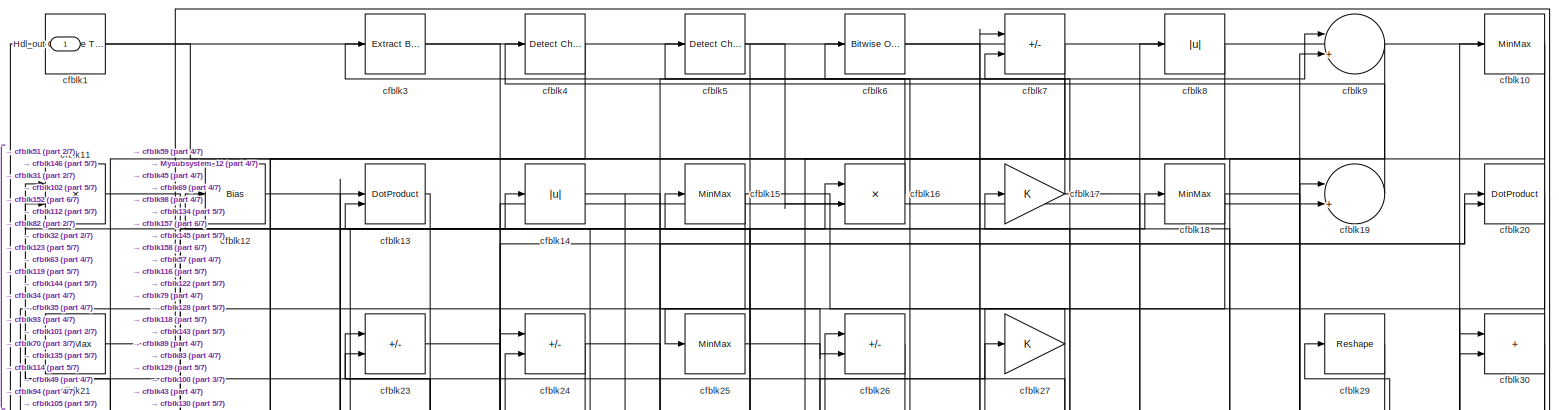
[diagram: root canvas - part 1/7, full width, top band]
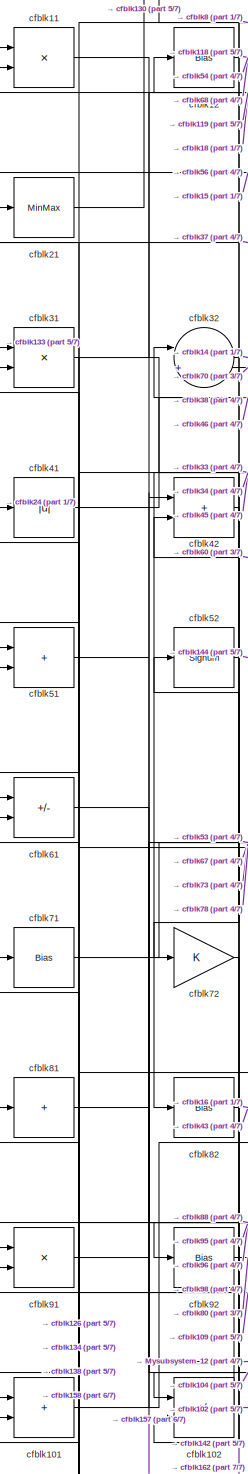
[diagram: root canvas - part 2/7, middle left region]
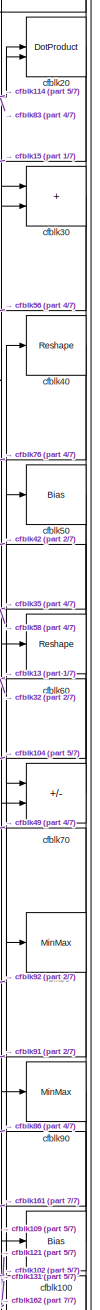
[diagram: root canvas - part 3/7, top right region]
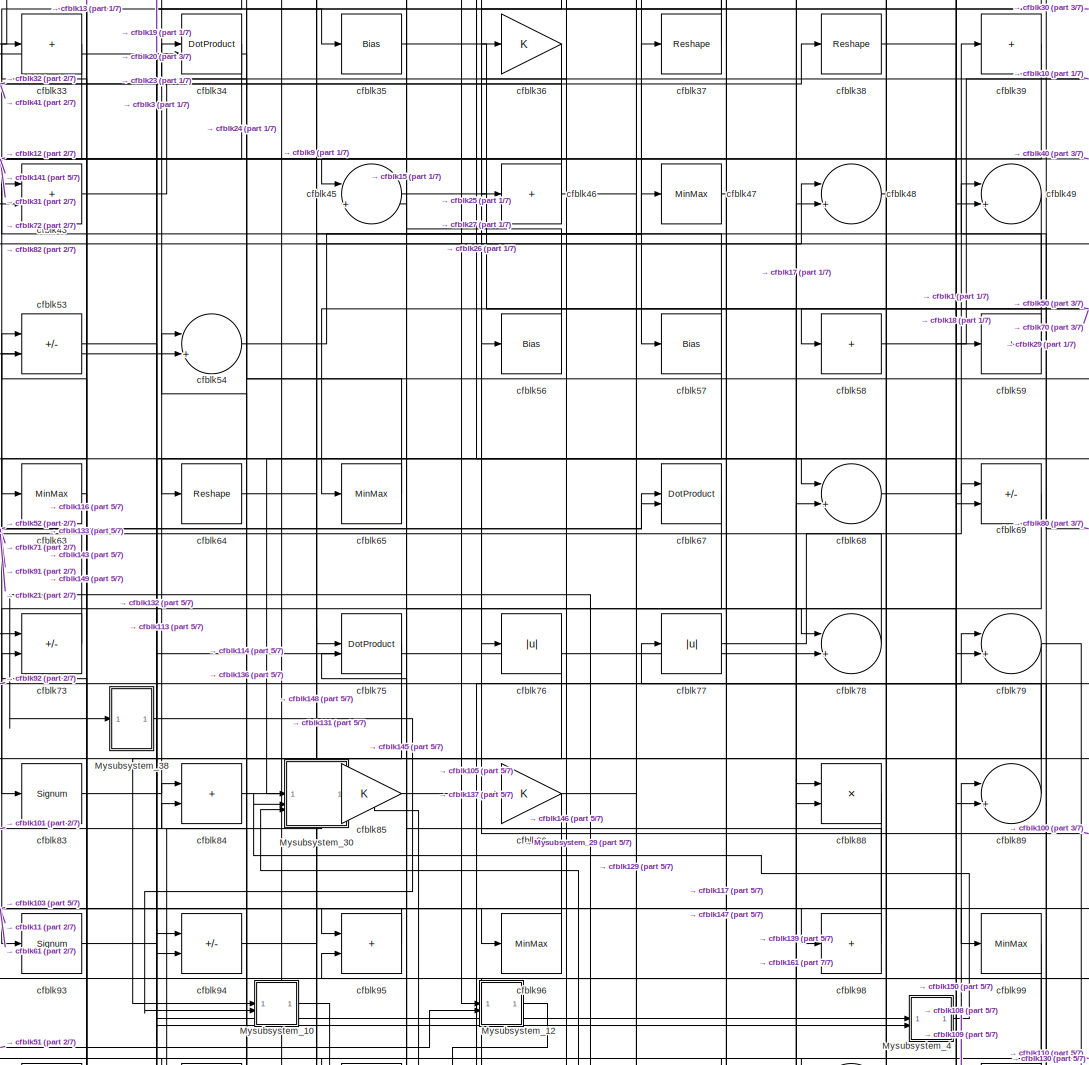
[diagram: root canvas - part 4/7, central region]
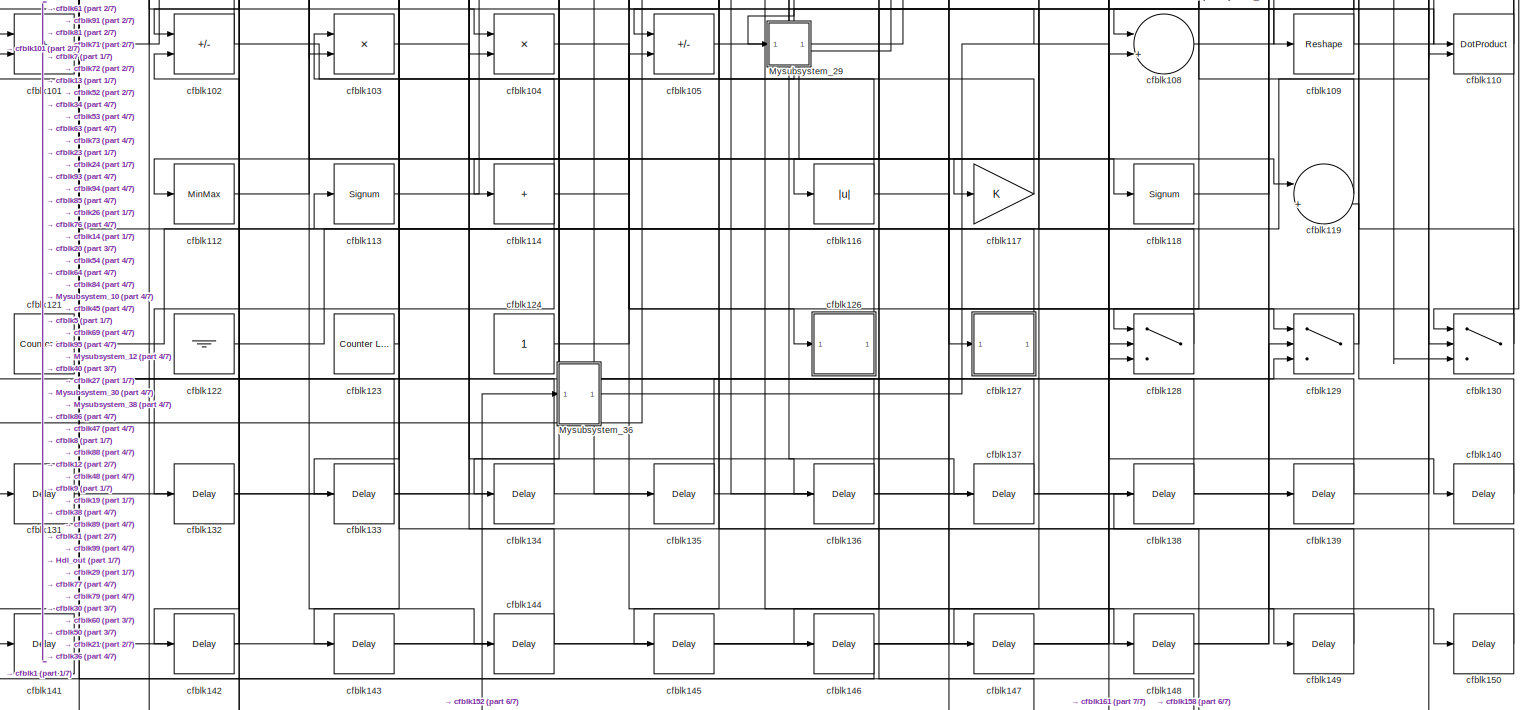
[diagram: root canvas - part 5/7, full width, bottom band]
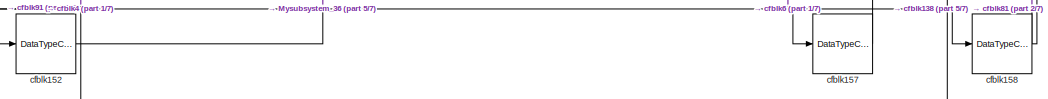
[diagram: root canvas - part 6/7, bottom center region]
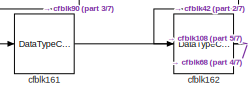
[diagram: root canvas - part 7/7, bottom left region]
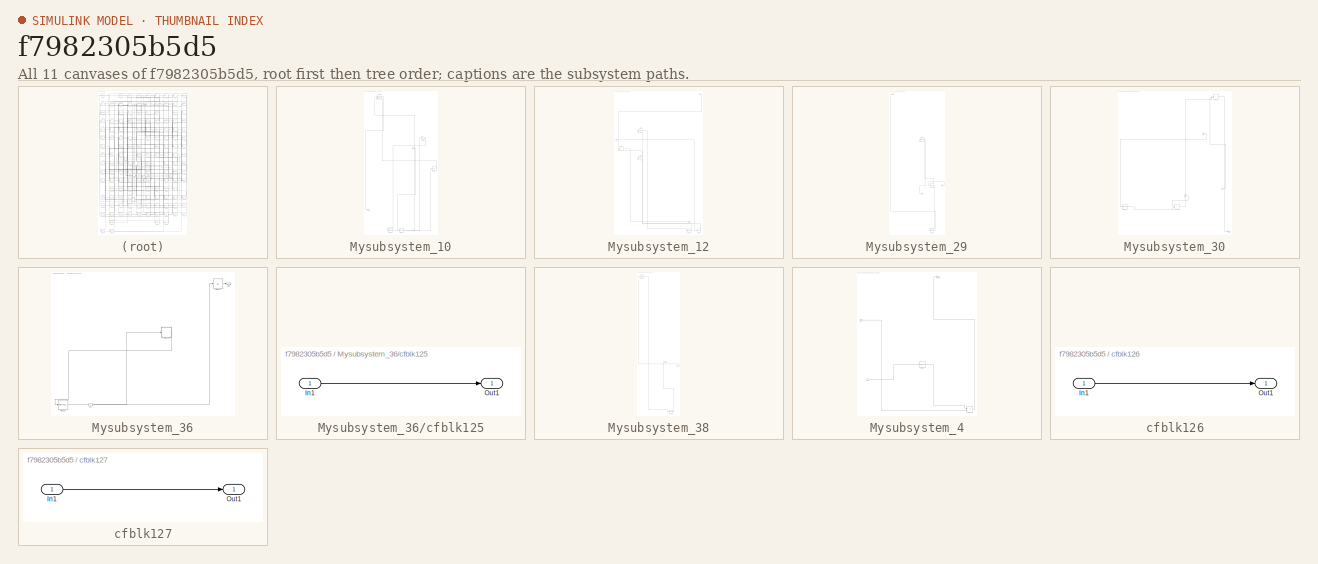
[diagram: thumbnail index - all 11 canvases of the model, root first then tree order]
MODEL slx_f7982305b5d5
KIND model
CONFIG AbsTol = auto
CONFIG EnableMultiTasking = off
CONFIG FixedStep = auto
CONFIG MaxStep = auto
CONFIG MinStep = auto
CONFIG RelTol = 1e-3
CONFIG SampleTimeConstraint = Unconstrained
CONFIG SolverName = VariableStepAuto
CONFIG StartTime = 0.0
CONFIG StopTime = 10.0
BLOCK [Outport] Hdl_out
  OutDataTypeStr = uint8
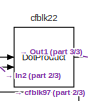
[diagram: Mysubsystem_10 - part 1/3, top left region]
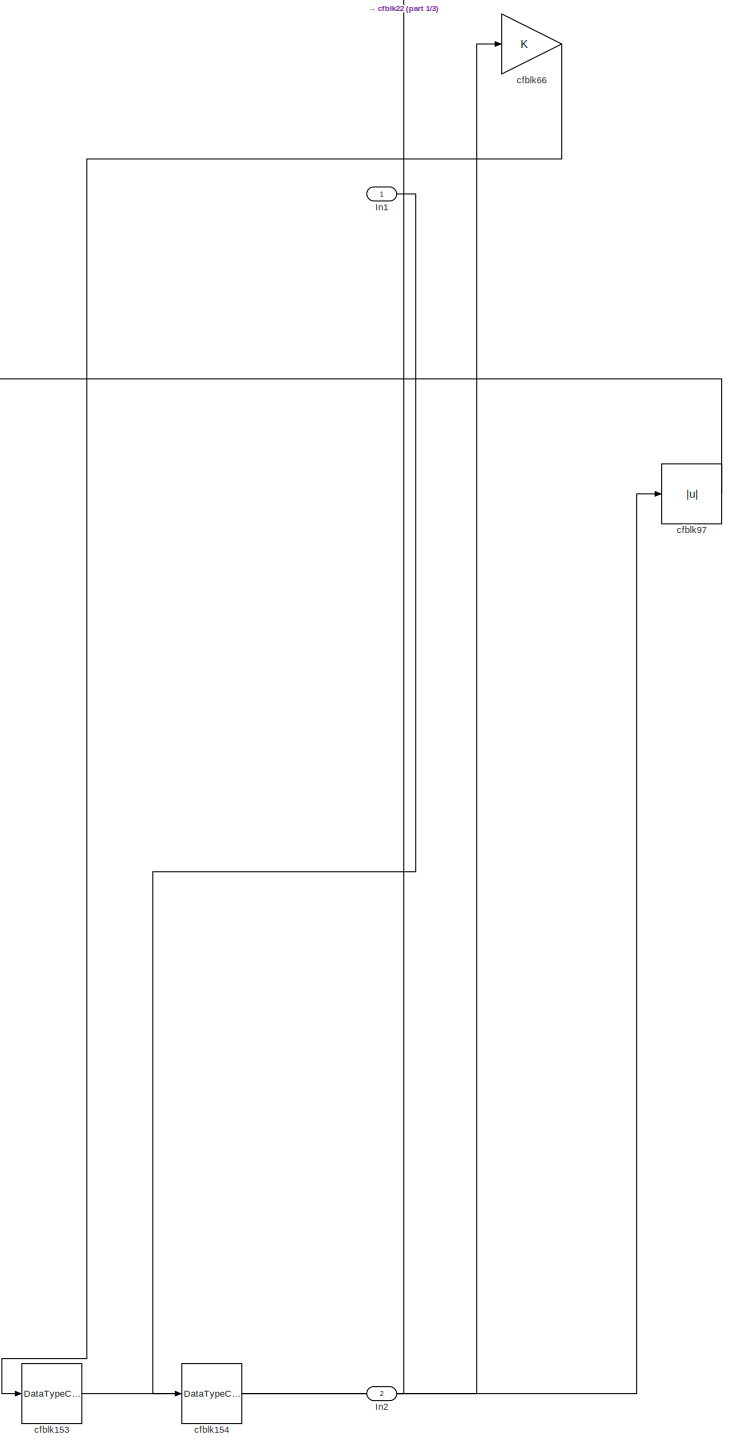
[diagram: Mysubsystem_10 - part 2/3, central region]
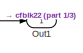
[diagram: Mysubsystem_10 - part 3/3, bottom left region]
BLOCK [SubSystem] Mysubsystem_10
  RTWFcnName = Mysubsystem_10
  RTWFcnNameOpts = User specified
  RTWFileNameOpts = Use function name
  RTWSystemCode = Reusable function
  TreatAsAtomicUnit = on
BLOCK [Inport] Mysubsystem_10/In1
BLOCK [Inport] Mysubsystem_10/In2
  Port = 2
BLOCK [Outport] Mysubsystem_10/Out1
BLOCK [DataTypeConversion] Mysubsystem_10/cfblk153
  OutDataTypeStr = uint8
  RndMeth = Floor
  SaturateOnIntegerOverflow = off
BLOCK [DataTypeConversion] Mysubsystem_10/cfblk154
  OutDataTypeStr = uint8
  RndMeth = Floor
  SaturateOnIntegerOverflow = off
BLOCK [DotProduct] Mysubsystem_10/cfblk22
  OutDataTypeStr = Inherit: Inherit via internal rule
BLOCK [Gain] Mysubsystem_10/cfblk66
BLOCK [Abs] Mysubsystem_10/cfblk97
  SaturateOnIntegerOverflow = off
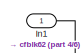
[diagram: Mysubsystem_12 - part 1/6, top right region]
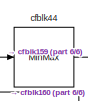
[diagram: Mysubsystem_12 - part 2/6, top left region]
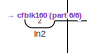
[diagram: Mysubsystem_12 - part 3/6, middle left region]
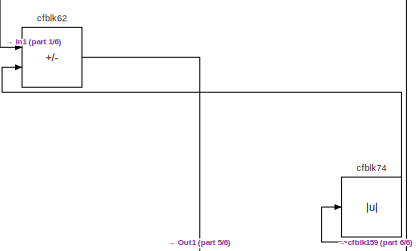
[diagram: Mysubsystem_12 - part 4/6, middle left region]
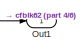
[diagram: Mysubsystem_12 - part 5/6, bottom right region]
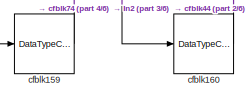
[diagram: Mysubsystem_12 - part 6/6, bottom right region]
BLOCK [SubSystem] Mysubsystem_12
  RTWFcnName = Mysubsystem_12
  RTWFcnNameOpts = User specified
  RTWFileNameOpts = Use function name
  RTWSystemCode = Reusable function
  TreatAsAtomicUnit = on
BLOCK [Inport] Mysubsystem_12/In1
BLOCK [Inport] Mysubsystem_12/In2
  Port = 2
BLOCK [Outport] Mysubsystem_12/Out1
BLOCK [DataTypeConversion] Mysubsystem_12/cfblk159
  OutDataTypeStr = uint8
  RndMeth = Floor
  SaturateOnIntegerOverflow = off
BLOCK [DataTypeConversion] Mysubsystem_12/cfblk160
  OutDataTypeStr = uint8
  RndMeth = Floor
  SaturateOnIntegerOverflow = off
BLOCK [MinMax] Mysubsystem_12/cfblk44
BLOCK [Sum] Mysubsystem_12/cfblk62
  IconShape = rectangular
  Inputs = +-
BLOCK [Abs] Mysubsystem_12/cfblk74
  SaturateOnIntegerOverflow = off
BLOCK [SubSystem] Mysubsystem_29
  RTWFcnName = Mysubsystem_29
  RTWFcnNameOpts = User specified
  RTWFileNameOpts = Use function name
  RTWSystemCode = Reusable function
  TreatAsAtomicUnit = on
BLOCK [Inport] Mysubsystem_29/In1
BLOCK [Outport] Mysubsystem_29/Out1
BLOCK [Outport] Mysubsystem_29/Out2
  Port = 2
BLOCK [Abs] Mysubsystem_29/cfblk106
  SaturateOnIntegerOverflow = off
BLOCK [DataTypeConversion] Mysubsystem_29/cfblk156
  OutDataTypeStr = uint8
  RndMeth = Floor
  SaturateOnIntegerOverflow = off
BLOCK [Reshape] Mysubsystem_29/cfblk55
BLOCK [SubSystem] Mysubsystem_30
  RTWFcnName = Mysubsystem_30
  RTWFcnNameOpts = User specified
  RTWFileNameOpts = Use function name
  RTWSystemCode = Reusable function
  TreatAsAtomicUnit = on
BLOCK [Inport] Mysubsystem_30/In1
BLOCK [Inport] Mysubsystem_30/In2
  Port = 2
BLOCK [Inport] Mysubsystem_30/In3
  Port = 3
BLOCK [Outport] Mysubsystem_30/Out1
BLOCK [Signum] Mysubsystem_30/cfblk111
BLOCK [Sum] Mysubsystem_30/cfblk115
  IconShape = rectangular
BLOCK [Sum] Mysubsystem_30/cfblk28
  IconShape = rectangular
BLOCK [SubSystem] Mysubsystem_36
  RTWFcnName = Mysubsystem_36
  RTWFcnNameOpts = User specified
  RTWFileNameOpts = Use function name
  RTWSystemCode = Reusable function
  TreatAsAtomicUnit = on
BLOCK [Inport] Mysubsystem_36/In1
BLOCK [Outport] Mysubsystem_36/Out1
BLOCK [Abs] Mysubsystem_36/cfblk107
  SaturateOnIntegerOverflow = off
BLOCK [SubSystem] Mysubsystem_36/cfblk125
  LibrarySourceBlock = hdlsllib/Ports &\nSubsystems/Subsystem
BLOCK [Inport] Mysubsystem_36/cfblk125/In1
BLOCK [Outport] Mysubsystem_36/cfblk125/Out1
BLOCK [DataTypeConversion] Mysubsystem_36/cfblk151
  OutDataTypeStr = uint8
  RndMeth = Floor
  SaturateOnIntegerOverflow = off
BLOCK [SubSystem] Mysubsystem_38
  RTWFcnName = Mysubsystem_38
  RTWFcnNameOpts = User specified
  RTWFileNameOpts = Use function name
  RTWSystemCode = Reusable function
  TreatAsAtomicUnit = on
BLOCK [Outport] Mysubsystem_38/Out1
BLOCK [DataTypeConversion] Mysubsystem_38/cfblk155
  OutDataTypeStr = uint8
  RndMeth = Floor
  SaturateOnIntegerOverflow = off
BLOCK [Reference] Mysubsystem_38/cfblk2  REF=simulink/Logic and Bit
Operations/Extract Bits
  LibrarySourceBlock = hdlsllib/Logic and Bit\nOperations/Extract Bits
  SourceBlock = simulink/Logic and Bit\nOperations/Extract Bits
  SourceType = Extract Bits
BLOCK [Inport] Mysubsystem_38/u
BLOCK [SubSystem] Mysubsystem_4
  RTWFcnName = Mysubsystem_4
  RTWFcnNameOpts = User specified
  RTWFileNameOpts = Use function name
  RTWSystemCode = Reusable function
  TreatAsAtomicUnit = on
BLOCK [Inport] Mysubsystem_4/In1
BLOCK [Inport] Mysubsystem_4/In2
  Port = 2
BLOCK [Outport] Mysubsystem_4/Out1
BLOCK [Product] Mysubsystem_4/cfblk120
  Inputs = */
  RndMeth = Zero
  SaturateOnIntegerOverflow = on
BLOCK [Signum] Mysubsystem_4/cfblk87
BLOCK [Reference] cfblk1  REF=hdlsllib/Logic and Bit
Operations/Compare
To Constant
  SourceBlock = hdlsllib/Logic and Bit\nOperations/Compare\nTo Constant
  SourceType = Compare To Constant
BLOCK [MinMax] cfblk10
  OutDataTypeStr = uint8
BLOCK [Bias] cfblk100
  Bias = 0.0
  SaturateOnIntegerOverflow = off
BLOCK [Sum] cfblk101
  IconShape = rectangular
  OutDataTypeStr = uint8
BLOCK [Sum] cfblk102
  IconShape = rectangular
  Inputs = +-
  OutDataTypeStr = uint8
BLOCK [Product] cfblk103
  Inputs = */
  OutDataTypeStr = uint8
  RndMeth = Zero
  SaturateOnIntegerOverflow = on
BLOCK [Product] cfblk104
  Inputs = */
  OutDataTypeStr = uint8
  RndMeth = Zero
  SaturateOnIntegerOverflow = on
BLOCK [Sum] cfblk105
  IconShape = rectangular
  Inputs = +-
  OutDataTypeStr = uint8
BLOCK [Sum] cfblk108
  Inputs = |++
  OutDataTypeStr = uint8
BLOCK [Reshape] cfblk109
BLOCK [Product] cfblk11
  Inputs = */
  OutDataTypeStr = uint8
  RndMeth = Zero
  SaturateOnIntegerOverflow = on
BLOCK [DotProduct] cfblk110
  OutDataTypeStr = uint8
BLOCK [MinMax] cfblk112
  OutDataTypeStr = uint8
BLOCK [Signum] cfblk113
BLOCK [Sum] cfblk114
  IconShape = rectangular
  Inputs = +
  OutDataTypeStr = uint8
BLOCK [Abs] cfblk116
  OutDataTypeStr = uint8
  SaturateOnIntegerOverflow = off
BLOCK [Gain] cfblk117
  OutDataTypeStr = uint8
BLOCK [Signum] cfblk118
BLOCK [Sum] cfblk119
  Inputs = |++
  OutDataTypeStr = uint8
BLOCK [Bias] cfblk12
  Bias = 0.0
  SaturateOnIntegerOverflow = off
BLOCK [Reference] cfblk121  REF=hdlsllib/Sources/Counter
Limited
  SourceBlock = hdlsllib/Sources/Counter\nLimited
  SourceType = Counter Limited
BLOCK [Ground] cfblk122
BLOCK [Reference] cfblk123  REF=hdlsllib/Sources/Counter
Limited
  SourceBlock = hdlsllib/Sources/Counter\nLimited
  SourceType = Counter Limited
BLOCK [Constant] cfblk124
  OutDataTypeStr = uint8
  SampleTime = -1
BLOCK [SubSystem] cfblk126
  LibrarySourceBlock = hdlsllib/Ports &\nSubsystems/Subsystem
BLOCK [Inport] cfblk126/In1
BLOCK [Outport] cfblk126/Out1
BLOCK [SubSystem] cfblk127
  LibrarySourceBlock = hdlsllib/Ports &\nSubsystems/Subsystem
BLOCK [Inport] cfblk127/In1
BLOCK [Outport] cfblk127/Out1
BLOCK [Switch] cfblk128
  InputSameDT = off
  OutDataTypeStr = uint8
  SaturateOnIntegerOverflow = off
BLOCK [Switch] cfblk129
  InputSameDT = off
  OutDataTypeStr = uint8
  SaturateOnIntegerOverflow = off
BLOCK [DotProduct] cfblk13
  OutDataTypeStr = uint8
BLOCK [Switch] cfblk130
  InputSameDT = off
  OutDataTypeStr = uint8
  SaturateOnIntegerOverflow = off
BLOCK [Delay] cfblk131
  InputPortMap = u0
  SampleTime = 1
BLOCK [Delay] cfblk132
  InputPortMap = u0
  SampleTime = 1
BLOCK [Delay] cfblk133
  InputPortMap = u0
  SampleTime = 1
BLOCK [Delay] cfblk134
  InputPortMap = u0
  SampleTime = 1
BLOCK [Delay] cfblk135
  InputPortMap = u0
  SampleTime = 1
BLOCK [Delay] cfblk136
  InputPortMap = u0
  SampleTime = 1
BLOCK [Delay] cfblk137
  InputPortMap = u0
  SampleTime = 1
BLOCK [Delay] cfblk138
  InputPortMap = u0
  SampleTime = 1
BLOCK [Delay] cfblk139
  InputPortMap = u0
  SampleTime = 1
BLOCK [Abs] cfblk14
  OutDataTypeStr = uint8
  SaturateOnIntegerOverflow = off
BLOCK [Delay] cfblk140
  InputPortMap = u0
  SampleTime = 1
BLOCK [Delay] cfblk141
  InputPortMap = u0
  SampleTime = 1
BLOCK [Delay] cfblk142
  InputPortMap = u0
  SampleTime = 1
BLOCK [Delay] cfblk143
  InputPortMap = u0
  SampleTime = 1
BLOCK [Delay] cfblk144
  InputPortMap = u0
  SampleTime = 1
BLOCK [Delay] cfblk145
  InputPortMap = u0
  SampleTime = 1
BLOCK [Delay] cfblk146
  InputPortMap = u0
  SampleTime = 1
BLOCK [Delay] cfblk147
  InputPortMap = u0
  SampleTime = 1
BLOCK [Delay] cfblk148
  InputPortMap = u0
  SampleTime = 1
BLOCK [Delay] cfblk149
  InputPortMap = u0
  SampleTime = 1
BLOCK [MinMax] cfblk15
  OutDataTypeStr = uint8
BLOCK [Delay] cfblk150
  InputPortMap = u0
  SampleTime = 1
BLOCK [DataTypeConversion] cfblk152
  OutDataTypeStr = uint8
  RndMeth = Floor
  SaturateOnIntegerOverflow = off
BLOCK [DataTypeConversion] cfblk157
  OutDataTypeStr = uint8
  RndMeth = Floor
  SaturateOnIntegerOverflow = off
BLOCK [DataTypeConversion] cfblk158
  OutDataTypeStr = uint8
  RndMeth = Floor
  SaturateOnIntegerOverflow = off
BLOCK [Product] cfblk16
  Inputs = */
  OutDataTypeStr = uint8
  RndMeth = Zero
  SaturateOnIntegerOverflow = on
BLOCK [DataTypeConversion] cfblk161
  OutDataTypeStr = uint8
  RndMeth = Floor
  SaturateOnIntegerOverflow = off
BLOCK [DataTypeConversion] cfblk162
  OutDataTypeStr = uint8
  RndMeth = Floor
  SaturateOnIntegerOverflow = off
BLOCK [Gain] cfblk17
  OutDataTypeStr = uint8
BLOCK [MinMax] cfblk18
  OutDataTypeStr = uint8
BLOCK [Sum] cfblk19
  Inputs = |++
  OutDataTypeStr = uint8
BLOCK [DotProduct] cfblk20
  OutDataTypeStr = uint8
BLOCK [MinMax] cfblk21
  OutDataTypeStr = uint8
BLOCK [Sum] cfblk23
  IconShape = rectangular
  Inputs = +-
  OutDataTypeStr = uint8
BLOCK [Sum] cfblk24
  IconShape = rectangular
  Inputs = +-
  OutDataTypeStr = uint8
BLOCK [MinMax] cfblk25
  OutDataTypeStr = uint8
BLOCK [Sum] cfblk26
  IconShape = rectangular
  Inputs = +-
  OutDataTypeStr = uint8
BLOCK [Gain] cfblk27
  OutDataTypeStr = uint8
BLOCK [Reshape] cfblk29
BLOCK [Reference] cfblk3  REF=simulink/Logic and Bit
Operations/Extract Bits
  LibrarySourceBlock = hdlsllib/Logic and Bit\nOperations/Extract Bits
  SourceBlock = simulink/Logic and Bit\nOperations/Extract Bits
  SourceType = Extract Bits
BLOCK [Sum] cfblk30
  IconShape = rectangular
  OutDataTypeStr = uint8
BLOCK [Product] cfblk31
  Inputs = */
  OutDataTypeStr = uint8
  RndMeth = Zero
  SaturateOnIntegerOverflow = on
BLOCK [Sum] cfblk32
  Inputs = |++
  OutDataTypeStr = uint8
BLOCK [Sum] cfblk33
  IconShape = rectangular
  Inputs = +
  OutDataTypeStr = uint8
BLOCK [DotProduct] cfblk34
  OutDataTypeStr = uint8
BLOCK [Bias] cfblk35
  Bias = 0.0
  SaturateOnIntegerOverflow = off
BLOCK [Gain] cfblk36
  OutDataTypeStr = uint8
BLOCK [Reshape] cfblk37
BLOCK [Reshape] cfblk38
BLOCK [Sum] cfblk39
  IconShape = rectangular
  Inputs = +
  OutDataTypeStr = uint8
BLOCK [Reference] cfblk4  REF=simulink/Logic and Bit
Operations/Detect
Change
  LibrarySourceBlock = hdlsllib/Logic and Bit\nOperations/Detect\nChange
  SourceBlock = simulink/Logic and Bit\nOperations/Detect\nChange
  SourceType = Detect Change
BLOCK [Reshape] cfblk40
BLOCK [Abs] cfblk41
  OutDataTypeStr = uint8
  SaturateOnIntegerOverflow = off
BLOCK [Sum] cfblk42
  IconShape = rectangular
  OutDataTypeStr = uint8
BLOCK [Sum] cfblk43
  IconShape = rectangular
  OutDataTypeStr = uint8
BLOCK [Sum] cfblk45
  Inputs = |++
  OutDataTypeStr = uint8
BLOCK [Sum] cfblk46
  IconShape = rectangular
  Inputs = +
  OutDataTypeStr = uint8
BLOCK [MinMax] cfblk47
  OutDataTypeStr = uint8
BLOCK [Sum] cfblk48
  Inputs = |++
  OutDataTypeStr = uint8
BLOCK [Sum] cfblk49
  Inputs = |++
  OutDataTypeStr = uint8
BLOCK [Reference] cfblk5  REF=simulink/Logic and Bit
Operations/Detect
Change
  LibrarySourceBlock = hdlsllib/Logic and Bit\nOperations/Detect\nChange
  SourceBlock = simulink/Logic and Bit\nOperations/Detect\nChange
  SourceType = Detect Change
BLOCK [Bias] cfblk50
  Bias = 0.0
  SaturateOnIntegerOverflow = off
BLOCK [Sum] cfblk51
  IconShape = rectangular
  OutDataTypeStr = uint8
BLOCK [Signum] cfblk52
BLOCK [Sum] cfblk53
  IconShape = rectangular
  Inputs = +-
  OutDataTypeStr = uint8
BLOCK [Sum] cfblk54
  Inputs = |++
  OutDataTypeStr = uint8
BLOCK [Bias] cfblk56
  Bias = 0.0
  SaturateOnIntegerOverflow = off
BLOCK [Bias] cfblk57
  Bias = 0.0
  SaturateOnIntegerOverflow = off
BLOCK [Sum] cfblk58
  IconShape = rectangular
  Inputs = +
  OutDataTypeStr = uint8
BLOCK [Sum] cfblk59
  IconShape = rectangular
  Inputs = +
  OutDataTypeStr = uint8
BLOCK [Reference] cfblk6  REF=simulink/Logic and Bit
Operations/Bitwise
Operator
  LibrarySourceBlock = hdlsllib/Logic and Bit\nOperations/Bitwise\nOperator
  SourceBlock = simulink/Logic and Bit\nOperations/Bitwise\nOperator
  SourceType = Bitwise Operator
BLOCK [Reshape] cfblk60
BLOCK [Sum] cfblk61
  IconShape = rectangular
  Inputs = +-
  OutDataTypeStr = uint8
BLOCK [MinMax] cfblk63
  OutDataTypeStr = uint8
BLOCK [Reshape] cfblk64
BLOCK [MinMax] cfblk65
  OutDataTypeStr = uint8
BLOCK [DotProduct] cfblk67
  OutDataTypeStr = uint8
BLOCK [Sum] cfblk68
  Inputs = |++
  OutDataTypeStr = uint8
BLOCK [Sum] cfblk69
  IconShape = rectangular
  Inputs = +-
  OutDataTypeStr = uint8
BLOCK [Sum] cfblk7
  IconShape = rectangular
  Inputs = +-
  OutDataTypeStr = uint8
BLOCK [Sum] cfblk70
  IconShape = rectangular
  Inputs = +-
  OutDataTypeStr = uint8
BLOCK [Bias] cfblk71
  Bias = 0.0
  SaturateOnIntegerOverflow = off
BLOCK [Gain] cfblk72
  OutDataTypeStr = uint8
BLOCK [Sum] cfblk73
  IconShape = rectangular
  Inputs = +-
  OutDataTypeStr = uint8
BLOCK [DotProduct] cfblk75
  OutDataTypeStr = uint8
BLOCK [Abs] cfblk76
  OutDataTypeStr = uint8
  SaturateOnIntegerOverflow = off
BLOCK [Abs] cfblk77
  OutDataTypeStr = uint8
  SaturateOnIntegerOverflow = off
BLOCK [Sum] cfblk78
  Inputs = |++
  OutDataTypeStr = uint8
BLOCK [Sum] cfblk79
  Inputs = |++
  OutDataTypeStr = uint8
BLOCK [Abs] cfblk8
  OutDataTypeStr = uint8
  SaturateOnIntegerOverflow = off
BLOCK [MinMax] cfblk80
  OutDataTypeStr = uint8
BLOCK [Sum] cfblk81
  IconShape = rectangular
  Inputs = +
  OutDataTypeStr = uint8
BLOCK [Bias] cfblk82
  Bias = 0.0
  SaturateOnIntegerOverflow = off
BLOCK [Signum] cfblk83
BLOCK [Sum] cfblk84
  IconShape = rectangular
  OutDataTypeStr = uint8
BLOCK [Gain] cfblk85
  OutDataTypeStr = uint8
BLOCK [Gain] cfblk86
  OutDataTypeStr = uint8
BLOCK [Product] cfblk88
  Inputs = */
  OutDataTypeStr = uint8
  RndMeth = Zero
  SaturateOnIntegerOverflow = on
BLOCK [Sum] cfblk89
  Inputs = |++
  OutDataTypeStr = uint8
BLOCK [Sum] cfblk9
  Inputs = |++
  OutDataTypeStr = uint8
BLOCK [MinMax] cfblk90
  OutDataTypeStr = uint8
BLOCK [Product] cfblk91
  Inputs = */
  OutDataTypeStr = uint8
  RndMeth = Zero
  SaturateOnIntegerOverflow = on
BLOCK [Bias] cfblk92
  Bias = 0.0
  SaturateOnIntegerOverflow = off
BLOCK [Signum] cfblk93
BLOCK [Sum] cfblk94
  IconShape = rectangular
  Inputs = +-
  OutDataTypeStr = uint8
BLOCK [Sum] cfblk95
  IconShape = rectangular
  OutDataTypeStr = uint8
BLOCK [MinMax] cfblk96
  OutDataTypeStr = uint8
BLOCK [Sum] cfblk98
  IconShape = rectangular
  Inputs = +
  OutDataTypeStr = uint8
BLOCK [MinMax] cfblk99
  OutDataTypeStr = uint8
LINE Mysubsystem_10/In1:1 -> Mysubsystem_10/cfblk154:1
LINE Mysubsystem_10/In2:1 -> Mysubsystem_10/cfblk22:2
LINE Mysubsystem_10/cfblk153:1 -> Mysubsystem_10/cfblk97:1
LINE Mysubsystem_10/cfblk154:1 -> Mysubsystem_10/cfblk66:1
LINE Mysubsystem_10/cfblk22:1 -> Mysubsystem_10/Out1:1
LINE Mysubsystem_10/cfblk66:1 -> Mysubsystem_10/cfblk153:1
LINE Mysubsystem_10/cfblk97:1 -> Mysubsystem_10/cfblk22:1
LINE Mysubsystem_10:1 -> cfblk131:1
LINE Mysubsystem_12/In1:1 -> Mysubsystem_12/cfblk62:1
LINE Mysubsystem_12/In2:1 -> Mysubsystem_12/cfblk160:1
LINE Mysubsystem_12/cfblk159:1 -> Mysubsystem_12/cfblk74:1
LINE Mysubsystem_12/cfblk160:1 -> Mysubsystem_12/cfblk44:1
LINE Mysubsystem_12/cfblk44:1 -> Mysubsystem_12/cfblk159:1
LINE Mysubsystem_12/cfblk62:1 -> Mysubsystem_12/Out1:1
LINE Mysubsystem_12/cfblk74:1 -> Mysubsystem_12/cfblk62:2
LINE Mysubsystem_12:1 -> cfblk149:1
LINE Mysubsystem_29/In1:1 -> Mysubsystem_29/cfblk106:1
NET Mysubsystem_29/cfblk106:1 -> Mysubsystem_29/cfblk156:1, Mysubsystem_29/cfblk55:1
LINE Mysubsystem_29/cfblk156:1 -> Mysubsystem_29/Out1:1
LINE Mysubsystem_29/cfblk55:1 -> Mysubsystem_29/Out2:1
LINE Mysubsystem_29:1 -> Mysubsystem_38:1
LINE Mysubsystem_29:2 -> Mysubsystem_30:3
LINE Mysubsystem_30/In1:1 -> Mysubsystem_30/cfblk111:1
LINE Mysubsystem_30/In2:1 -> Mysubsystem_30/cfblk28:2
LINE Mysubsystem_30/In3:1 -> Mysubsystem_30/cfblk115:1
LINE Mysubsystem_30/cfblk111:1 -> Mysubsystem_30/cfblk115:2
LINE Mysubsystem_30/cfblk115:1 -> Mysubsystem_30/cfblk28:1
LINE Mysubsystem_30/cfblk28:1 -> Mysubsystem_30/Out1:1
LINE Mysubsystem_30:1 -> cfblk139:1
LINE Mysubsystem_36/In1:1 -> Mysubsystem_36/cfblk125:1
LINE Mysubsystem_36/cfblk107:1 -> Mysubsystem_36/Out1:1
LINE Mysubsystem_36/cfblk125/In1:1 -> Mysubsystem_36/cfblk125/Out1:1
LINE Mysubsystem_36/cfblk125:1 -> Mysubsystem_36/cfblk151:1
LINE Mysubsystem_36/cfblk151:1 -> Mysubsystem_36/cfblk107:1
NET Mysubsystem_36:1 -> Mysubsystem_29:1, cfblk140:1
LINE Mysubsystem_38/cfblk155:1 -> Mysubsystem_38/Out1:1
LINE Mysubsystem_38/cfblk2:1 -> Mysubsystem_38/cfblk155:1
LINE Mysubsystem_38/u:1 -> Mysubsystem_38/cfblk2:1
LINE Mysubsystem_38:1 -> Mysubsystem_10:2
LINE Mysubsystem_4/In1:1 -> Mysubsystem_4/cfblk120:2
LINE Mysubsystem_4/In2:1 -> Mysubsystem_4/cfblk87:1
LINE Mysubsystem_4/cfblk120:1 -> Mysubsystem_4/Out1:1
LINE Mysubsystem_4/cfblk87:1 -> Mysubsystem_4/cfblk120:1
LINE Mysubsystem_4:1 -> Mysubsystem_30:2
LINE cfblk100:1 -> cfblk86:1
NET cfblk101:1 -> cfblk24:2, cfblk41:1, cfblk67:1
NET cfblk102:1 -> cfblk40:1, cfblk71:1
LINE cfblk103:1 -> cfblk136:1
LINE cfblk104:1 -> cfblk126:1
NET cfblk105:1 -> cfblk127:1, cfblk79:1
LINE cfblk108:1 -> cfblk89:1
NET cfblk109:1 -> cfblk31:2, cfblk50:1
LINE cfblk10:1 -> Mysubsystem_12:1
LINE cfblk110:1 -> cfblk36:1
LINE cfblk112:1 -> cfblk13:1
LINE cfblk113:1 -> cfblk85:1
NET cfblk114:1 -> cfblk132:1, cfblk20:2, cfblk23:2
NET cfblk116:1 -> cfblk128:3, cfblk73:2
NET cfblk117:1 -> cfblk112:1, cfblk95:2
LINE cfblk118:1 -> cfblk19:1
LINE cfblk119:1 -> cfblk12:1
LINE cfblk11:1 -> cfblk96:1
LINE cfblk121:1 -> cfblk60:1
LINE cfblk122:1 -> cfblk8:1
LINE cfblk123:1 -> cfblk23:1
LINE cfblk124:1 -> cfblk105:2
LINE cfblk126/In1:1 -> cfblk126/Out1:1
NET cfblk126:1 -> cfblk113:1, cfblk61:2
LINE cfblk127/In1:1 -> cfblk127/Out1:1
LINE cfblk127:1 -> cfblk103:1
LINE cfblk128:1 -> cfblk7:2
LINE cfblk129:1 -> cfblk29:1
NET cfblk12:1 -> cfblk118:1, cfblk46:1, cfblk54:2, cfblk68:1
NET cfblk130:1 -> Hdl_out:1, cfblk77:1
LINE cfblk131:1 -> cfblk30:1
LINE cfblk132:1 -> cfblk94:1
LINE cfblk133:1 -> cfblk31:1
LINE cfblk134:1 -> cfblk101:2
LINE cfblk135:1 -> cfblk129:3
LINE cfblk136:1 -> cfblk54:1
LINE cfblk137:1 -> cfblk84:2
LINE cfblk138:1 -> cfblk91:2
LINE cfblk139:1 -> cfblk88:1
LINE cfblk13:1 -> cfblk63:1
LINE cfblk140:1 -> cfblk119:2
LINE cfblk141:1 -> cfblk128:2
LINE cfblk142:1 -> cfblk102:2
LINE cfblk143:1 -> cfblk9:2
LINE cfblk144:1 -> cfblk24:1
LINE cfblk145:1 -> cfblk7:1
LINE cfblk146:1 -> cfblk1:1
LINE cfblk147:1 -> cfblk48:2
LINE cfblk148:1 -> cfblk129:2
LINE cfblk149:1 -> cfblk53:2
NET cfblk14:1 -> cfblk135:1, cfblk26:2
LINE cfblk150:1 -> cfblk45:2
LINE cfblk152:1 -> Mysubsystem_36:1
LINE cfblk157:1 -> cfblk6:1
NET cfblk158:1 -> cfblk138:1, cfblk81:1
NET cfblk15:1 -> cfblk100:1, cfblk51:2
NET cfblk161:1 -> cfblk108:2, cfblk68:2
LINE cfblk162:1 -> cfblk90:1
LINE cfblk16:1 -> cfblk3:1
NET cfblk17:1 -> cfblk5:1, cfblk79:2
NET cfblk18:1 -> cfblk57:1, cfblk89:2
LINE cfblk19:1 -> cfblk4:1
LINE cfblk1:1 -> cfblk59:1
LINE cfblk20:1 -> cfblk70:2
LINE cfblk21:1 -> cfblk130:1
NET cfblk23:1 -> cfblk119:1, cfblk35:1
NET cfblk24:1 -> cfblk49:2, cfblk94:2
LINE cfblk25:1 -> cfblk69:2
LINE cfblk26:1 -> cfblk134:1
NET cfblk27:1 -> cfblk116:1, cfblk25:1
LINE cfblk29:1 -> cfblk83:1
LINE cfblk30:1 -> cfblk56:1
NET cfblk31:1 -> cfblk18:1, cfblk45:1, cfblk61:1
LINE cfblk32:1 -> cfblk14:1
LINE cfblk33:1 -> cfblk82:1
NET cfblk34:1 -> cfblk143:1, cfblk72:1
LINE cfblk35:1 -> cfblk70:1
LINE cfblk36:1 -> cfblk141:1
LINE cfblk37:1 -> cfblk11:1
LINE cfblk38:1 -> cfblk150:1
LINE cfblk39:1 -> cfblk64:1
LINE cfblk3:1 -> cfblk34:2
LINE cfblk40:1 -> cfblk76:1
LINE cfblk41:1 -> cfblk38:1
LINE cfblk42:1 -> cfblk162:1
LINE cfblk43:1 -> cfblk10:1
NET cfblk45:1 -> cfblk27:1, cfblk88:2
NET cfblk46:1 -> cfblk32:1, cfblk78:1
LINE cfblk47:1 -> cfblk117:1
LINE cfblk48:1 -> cfblk108:1
LINE cfblk49:1 -> cfblk65:1
LINE cfblk4:1 -> cfblk152:1
LINE cfblk50:1 -> cfblk58:1
NET cfblk51:1 -> Mysubsystem_12:2, cfblk42:1
LINE cfblk52:1 -> cfblk144:1
NET cfblk53:1 -> Mysubsystem_4:1, cfblk33:1
NET cfblk54:1 -> cfblk130:2, cfblk37:1, cfblk48:1
LINE cfblk56:1 -> cfblk11:2
NET cfblk57:1 -> Mysubsystem_30:1, cfblk43:1
LINE cfblk58:1 -> cfblk30:2
LINE cfblk59:1 -> cfblk15:1
NET cfblk5:1 -> cfblk105:1, cfblk16:2
NET cfblk60:1 -> cfblk104:2, cfblk42:2
LINE cfblk61:1 -> cfblk98:1
LINE cfblk63:1 -> cfblk133:1
NET cfblk64:1 -> cfblk148:1, cfblk47:1
LINE cfblk65:1 -> cfblk34:1
LINE cfblk67:1 -> cfblk93:1
LINE cfblk68:1 -> cfblk39:1
LINE cfblk69:1 -> cfblk145:1
LINE cfblk6:1 -> cfblk158:1
NET cfblk70:1 -> cfblk13:2, cfblk32:2
LINE cfblk71:1 -> cfblk53:1
LINE cfblk72:1 -> cfblk142:1
LINE cfblk73:1 -> cfblk52:1
LINE cfblk75:1 -> Mysubsystem_10:1
LINE cfblk76:1 -> cfblk114:1
NET cfblk77:1 -> cfblk69:1, cfblk99:1
LINE cfblk78:1 -> cfblk21:1
NET cfblk79:1 -> cfblk130:3, cfblk95:1
LINE cfblk7:1 -> cfblk102:1
NET cfblk80:1 -> cfblk49:1, cfblk91:1
LINE cfblk81:1 -> cfblk104:1
NET cfblk82:1 -> cfblk16:1, cfblk43:2
NET cfblk83:1 -> cfblk20:1, cfblk78:2, cfblk84:1
NET cfblk84:1 -> cfblk109:1, cfblk110:2
LINE cfblk85:1 -> cfblk137:1
NET cfblk86:1 -> cfblk103:2, cfblk129:1
LINE cfblk88:1 -> cfblk101:1
LINE cfblk89:1 -> cfblk17:1
LINE cfblk8:1 -> cfblk51:1
LINE cfblk90:1 -> cfblk161:1
NET cfblk91:1 -> cfblk157:1, cfblk67:2
NET cfblk92:1 -> cfblk73:1, cfblk80:1
NET cfblk93:1 -> Mysubsystem_4:2, cfblk110:1, cfblk19:2
NET cfblk94:1 -> cfblk75:1, cfblk9:1
LINE cfblk95:1 -> cfblk92:1
LINE cfblk96:1 -> cfblk75:2
LINE cfblk98:1 -> cfblk26:1
NET cfblk99:1 -> cfblk146:1, cfblk147:1
LINE cfblk9:1 -> cfblk128:1
note: NET lines group one-source signal fan-out (src -> all destinations, sorted); 1:1 wires keep LINE
